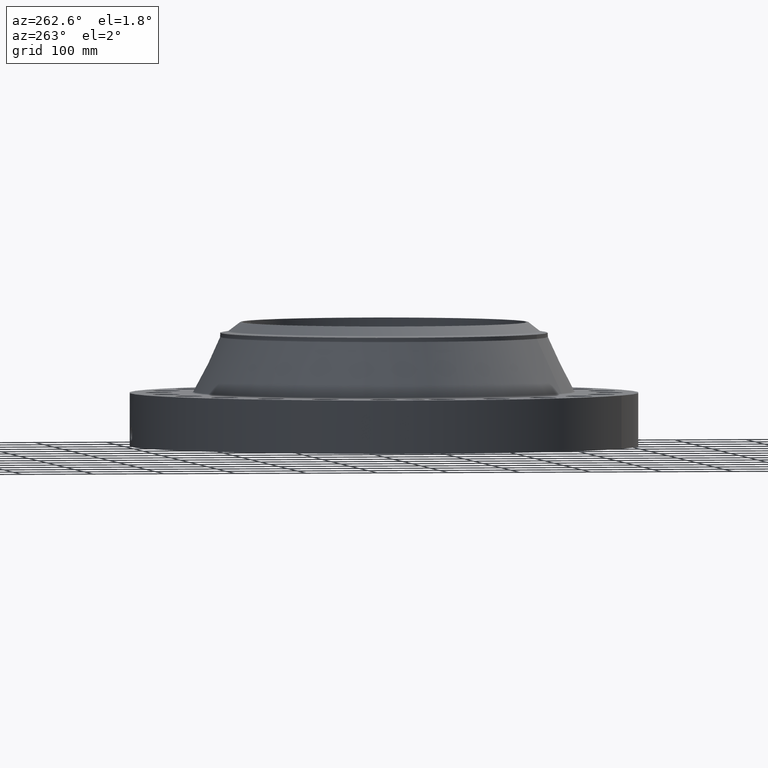
[diagram: clean part render]
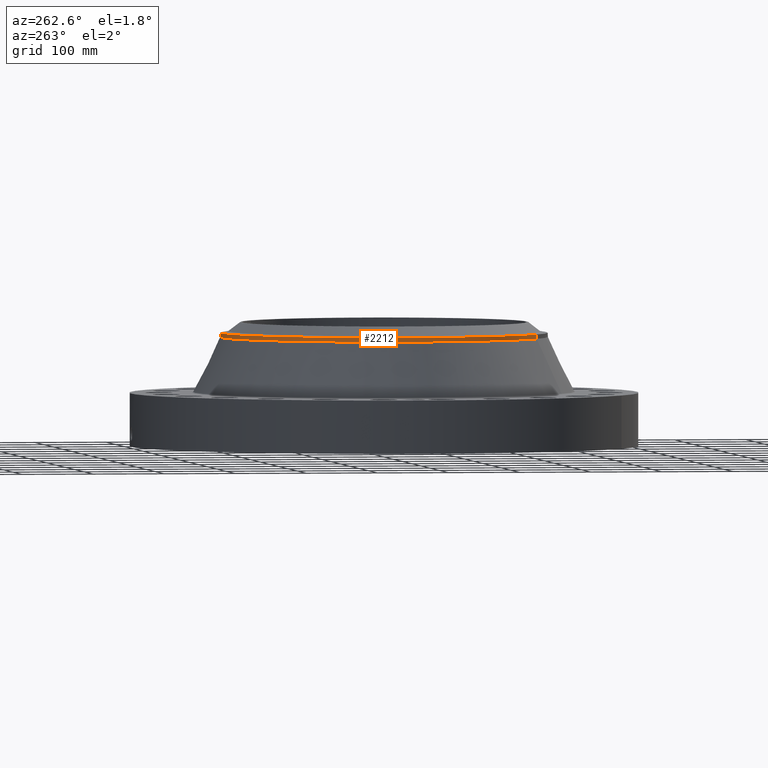
[diagram: same view with one face highlighted and labeled with its STEP entity id]
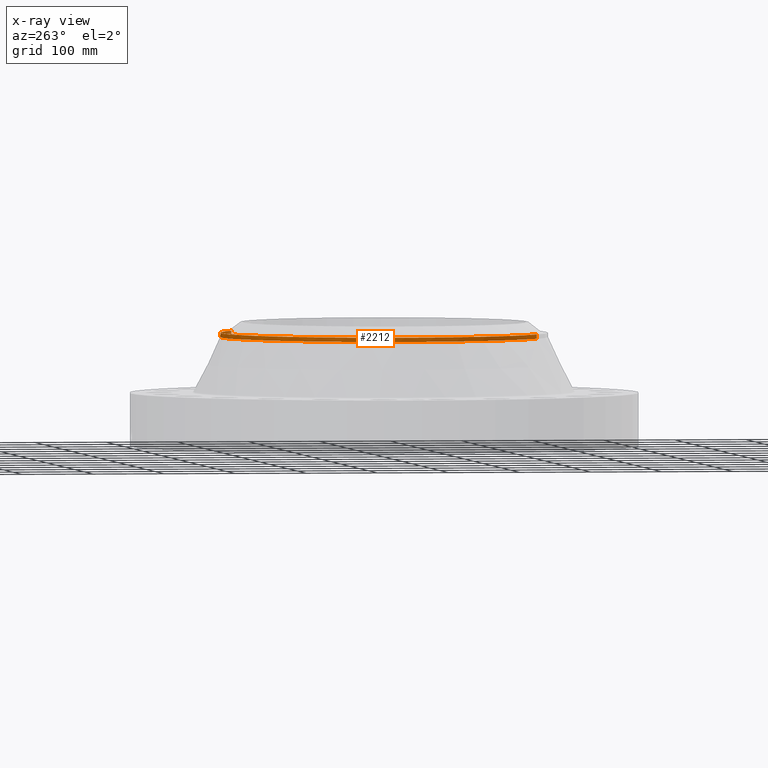
[diagram: x-ray of the same camera — body ghosted, the highlighted face saturated]
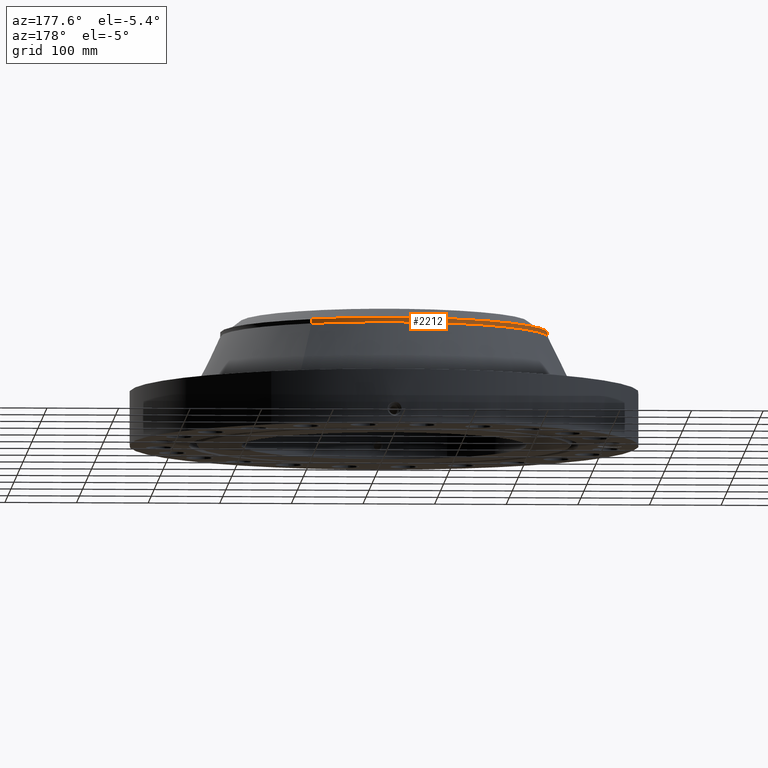
[diagram: same view with one face highlighted and labeled with its STEP entity id]
A machine part, auxiliary view. The second image highlights one B-rep face of the part: STEP entity #2212.
The next image is the same camera in x-ray: the body ghosted, the highlighted face saturated — about 1% of this face is hidden behind the body in this view.
A second angle (auxiliary view) of the same face is appended — the face is thin or edge-on in the first view.
In plain terms, the highlighted cylindrical surface (partial cylindrical patch) has radius 228.6 mm, axis along (0, 0, -1).
Its self-contained STEP definition (entity closure, byte-faithful):
#1701=AXIS2_PLACEMENT_3D('Circle Axis2P3D',#1699,#1700,$) ;
#1728=AXIS2_PLACEMENT_3D('Circle Axis2P3D',#1726,#1727,$) ;
#2184=AXIS2_PLACEMENT_3D('Cylinder Axis2P3D',#2181,#2182,#2183) ;
#2195=AXIS2_PLACEMENT_3D('Circle Axis2P3D',#2193,#2194,$) ;
#1696=CARTESIAN_POINT('Vertex',(-4.31482984746,7.89824305704,6.22649883859)) ;
#1699=CARTESIAN_POINT('Axis2P3D Location',(0.,0.,6.22649883859)) ;
#1703=CARTESIAN_POINT('Vertex',(-4.31482984746,-7.89824305704,6.22649883859)) ;
#1723=CARTESIAN_POINT('Vertex',(4.31482984746,7.89824305704,6.22649883859)) ;
#1726=CARTESIAN_POINT('Axis2P3D Location',(0.,0.,6.22649883859)) ;
#2181=CARTESIAN_POINT('Axis2P3D Location',(0.,0.,3.40600000001)) ;
#2186=CARTESIAN_POINT('Line Origine',(4.31482984746,7.89824305704,6.10838860237)) ;
#2190=CARTESIAN_POINT('Vertex',(4.31482984746,7.89824305704,5.99027836615)) ;
#2193=CARTESIAN_POINT('Axis2P3D Location',(0.,0.,5.99027836615)) ;
#2197=CARTESIAN_POINT('Vertex',(-4.31482984746,-7.89824305704,5.99027836615)) ;
#2200=CARTESIAN_POINT('Line Origine',(-4.31482984746,-7.89824305704,6.10838860237)) ;
#1700=DIRECTION('Axis2P3D Direction',(0.,0.,-0.0393700787402)) ;
#1727=DIRECTION('Axis2P3D Direction',(0.,0.,-0.0393700787402)) ;
#2182=DIRECTION('Axis2P3D Direction',(0.,0.,-0.0393700787402)) ;
#2183=DIRECTION('Axis2P3D XDirection',(0.0188750212049,0.0345504945626,0.)) ;
#2187=DIRECTION('Vector Direction',(0.,0.,-0.0393700787402)) ;
#2194=DIRECTION('Axis2P3D Direction',(0.,0.,-0.0393700787402)) ;
#2201=DIRECTION('Vector Direction',(0.,0.,-0.0393700787402)) ;
#2188=VECTOR('Line Direction',#2187,0.0393700787402) ;
#2202=VECTOR('Line Direction',#2201,0.0393700787402) ;
#2206=ORIENTED_EDGE('',*,*,#2192,.F.) ;
#2207=ORIENTED_EDGE('',*,*,#2199,.F.) ;
#2208=ORIENTED_EDGE('',*,*,#2204,.T.) ;
#2209=ORIENTED_EDGE('',*,*,#1705,.F.) ;
#2210=ORIENTED_EDGE('',*,*,#1730,.T.) ;
#2212=ADVANCED_FACE('PartBody',(#2211),#2185,.T.) ;
#1702=CIRCLE('generated circle',#1701,9.00000000004) ;
#1729=CIRCLE('generated circle',#1728,9.00000000004) ;
#2196=CIRCLE('generated circle',#2195,9.00000000004) ;
#2185=CYLINDRICAL_SURFACE('generated cylinder',#2184,9.00000000004) ;
#1705=EDGE_CURVE('',#1697,#1704,#1702,.F.) ;
#1730=EDGE_CURVE('',#1697,#1724,#1729,.T.) ;
#2192=EDGE_CURVE('',#2191,#1724,#2189,.F.) ;
#2199=EDGE_CURVE('',#2198,#2191,#2196,.T.) ;
#2204=EDGE_CURVE('',#2198,#1704,#2203,.F.) ;
#2205=EDGE_LOOP('',(#2206,#2207,#2208,#2209,#2210)) ;
#2211=FACE_OUTER_BOUND('',#2205,.T.) ;
#2189=LINE('Line',#2186,#2188) ;
#2203=LINE('Line',#2200,#2202) ;
#1697=VERTEX_POINT('',#1696) ;
#1704=VERTEX_POINT('',#1703) ;
#1724=VERTEX_POINT('',#1723) ;
#2191=VERTEX_POINT('',#2190) ;
#2198=VERTEX_POINT('',#2197) ;